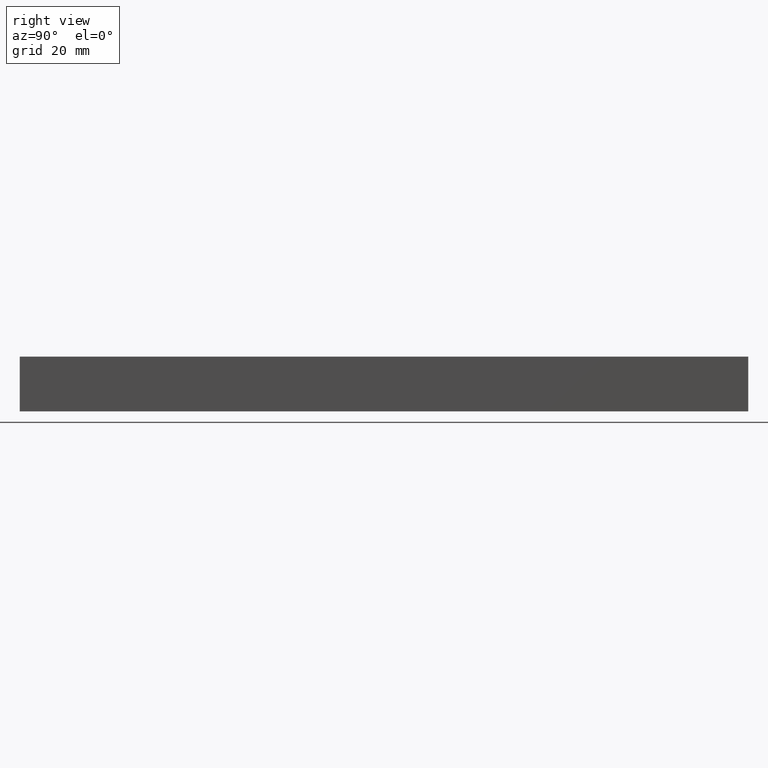
[diagram: clean part render]
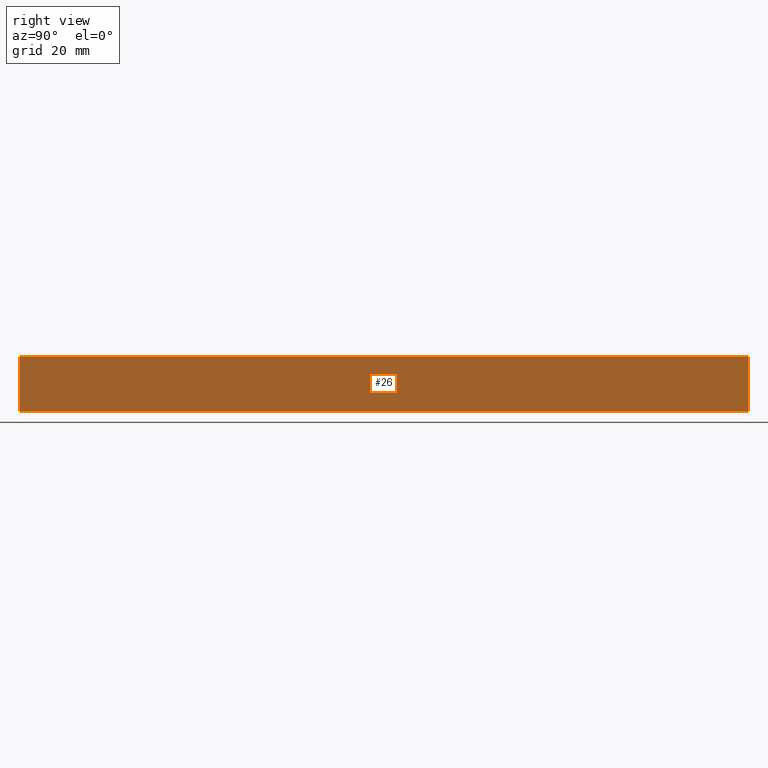
[diagram: same view with one face highlighted and labeled with its STEP entity id]
A machine part, right view. The second image highlights one B-rep face of the part: STEP entity #26.
In plain terms, the highlighted planar face has unit normal (1, 0, 0).
Its self-contained STEP definition (entity closure, byte-faithful):
#3 = DIRECTION ( 'NONE',  ( -0.0000000000000000000, -0.0000000000000000000, 1.000000000000000000 ) ) ;
#12 = VERTEX_POINT ( 'NONE', #147 ) ;
#17 = VERTEX_POINT ( 'NONE', #186 ) ;
#22 = DIRECTION ( 'NONE',  ( 0.0000000000000000000, -1.000000000000000000, 0.0000000000000000000 ) ) ;
#23 = CARTESIAN_POINT ( 'NONE',  ( 10.00000000000000000, 200.0000000000000000, 0.0000000000000000000 ) ) ;
#26 = ADVANCED_FACE ( 'NONE', ( #232 ), #118, .T. ) ;
#46 = DIRECTION ( 'NONE',  ( 1.000000000000000000, 0.0000000000000000000, 0.0000000000000000000 ) ) ;
#53 = EDGE_CURVE ( 'NONE', #17, #12, #154, .T. ) ;
#71 = VECTOR ( 'NONE', #198, 1000.000000000000000 ) ;
#73 = VECTOR ( 'NONE', #22, 1000.000000000000000 ) ;
#81 = CARTESIAN_POINT ( 'NONE',  ( 10.00000000000000000, 1000.000000000000000, 0.0000000000000000000 ) ) ;
#89 = DIRECTION ( 'NONE',  ( -0.0000000000000000000, -0.0000000000000000000, 1.000000000000000000 ) ) ;
#95 = EDGE_CURVE ( 'NONE', #17, #111, #144, .T. ) ;
#100 = CARTESIAN_POINT ( 'NONE',  ( 10.00000000000000000, 0.0000000000000000000, 0.0000000000000000000 ) ) ;
#111 = VERTEX_POINT ( 'NONE', #207 ) ;
#113 = VERTEX_POINT ( 'NONE', #120 ) ;
#118 = PLANE ( 'NONE',  #143 ) ;
#119 = EDGE_CURVE ( 'NONE', #12, #113, #176, .T. ) ;
#120 = CARTESIAN_POINT ( 'NONE',  ( 10.00000000000000000, 0.0000000000000000000, 15.00000000000000000 ) ) ;
#123 = CARTESIAN_POINT ( 'NONE',  ( 10.00000000000000000, 1000.000000000000000, 15.00000000000000000 ) ) ;
#124 = ORIENTED_EDGE ( 'NONE', *, *, #223, .T. ) ;
#132 = EDGE_LOOP ( 'NONE', ( #211, #228, #218, #124 ) ) ;
#143 = AXIS2_PLACEMENT_3D ( 'NONE', #81, #46, #189 ) ;
#144 = LINE ( 'NONE', #23, #190 ) ;
#147 = CARTESIAN_POINT ( 'NONE',  ( 10.00000000000000000, 0.0000000000000000000, 0.0000000000000000000 ) ) ;
#154 = LINE ( 'NONE', #181, #73 ) ;
#155 = LINE ( 'NONE', #123, #71 ) ;
#176 = LINE ( 'NONE', #100, #238 ) ;
#181 = CARTESIAN_POINT ( 'NONE',  ( 10.00000000000000000, 1000.000000000000000, 0.0000000000000000000 ) ) ;
#186 = CARTESIAN_POINT ( 'NONE',  ( 10.00000000000000000, 200.0000000000000000, 0.0000000000000000000 ) ) ;
#189 = DIRECTION ( 'NONE',  ( 0.0000000000000000000, 0.0000000000000000000, -1.000000000000000000 ) ) ;
#190 = VECTOR ( 'NONE', #3, 1000.000000000000000 ) ;
#198 = DIRECTION ( 'NONE',  ( 0.0000000000000000000, -1.000000000000000000, 0.0000000000000000000 ) ) ;
#207 = CARTESIAN_POINT ( 'NONE',  ( 10.00000000000000000, 200.0000000000000000, 15.00000000000000000 ) ) ;
#211 = ORIENTED_EDGE ( 'NONE', *, *, #119, .F. ) ;
#218 = ORIENTED_EDGE ( 'NONE', *, *, #95, .T. ) ;
#223 = EDGE_CURVE ( 'NONE', #111, #113, #155, .T. ) ;
#228 = ORIENTED_EDGE ( 'NONE', *, *, #53, .F. ) ;
#232 = FACE_OUTER_BOUND ( 'NONE', #132, .T. ) ;
#238 = VECTOR ( 'NONE', #89, 1000.000000000000000 ) ;